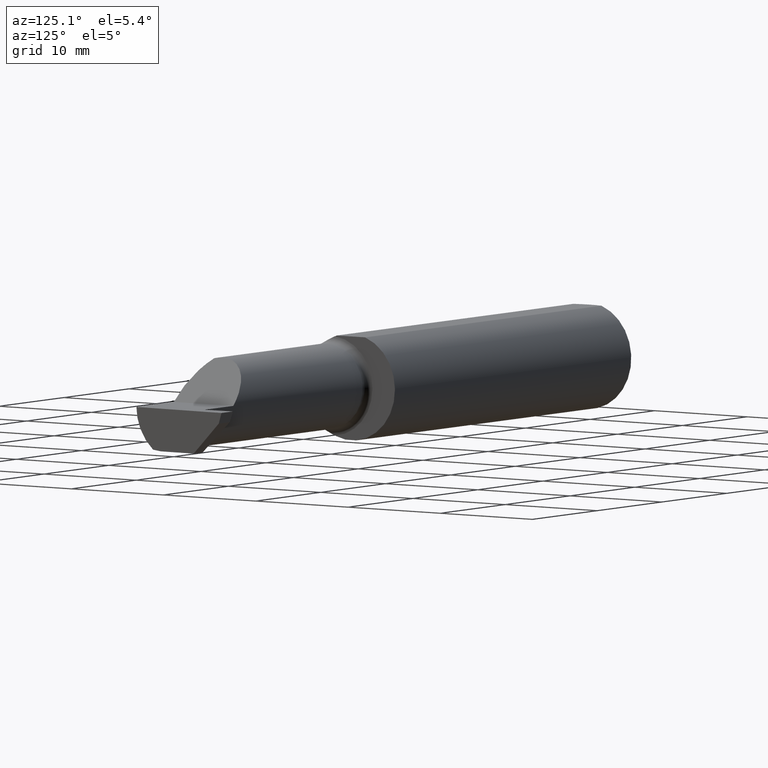
[diagram: clean part render]
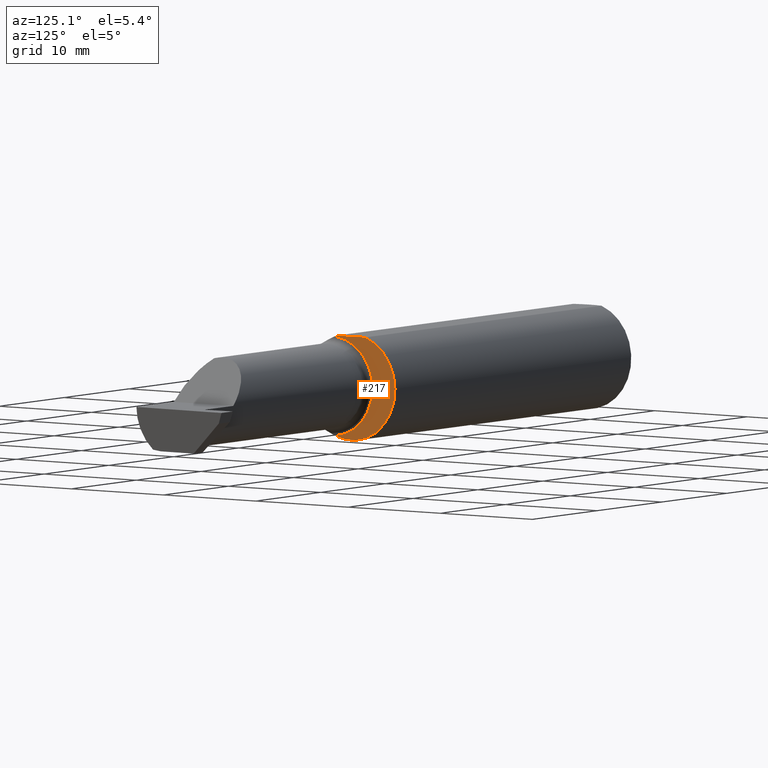
[diagram: same view with one face highlighted and labeled with its STEP entity id]
A machine part, auxiliary view. The second image highlights one B-rep face of the part: STEP entity #217.
In plain terms, the highlighted planar face has unit normal (1, 0, 0).
Its self-contained STEP definition (entity closure, byte-faithful):
#8 = ORIENTED_EDGE ( 'NONE', *, *, #441, .T. ) ;
#17 = CARTESIAN_POINT ( 'NONE',  ( 1.450000000000000178, -0.06851976604679065053, -0.1743704796142198643 ) ) ;
#66 = DIRECTION ( 'NONE',  ( 1.000000000000000000, 0.000000000000000000, 0.000000000000000000 ) ) ;
#115 = VERTEX_POINT ( 'NONE', #787 ) ;
#144 = VECTOR ( 'NONE', #442, 39.37007874015748143 ) ;
#150 = EDGE_LOOP ( 'NONE', ( #8, #459, #616, #560 ) ) ;
#167 = DIRECTION ( 'NONE',  ( 1.000000000000000000, 0.000000000000000000, 0.000000000000000000 ) ) ;
#177 = AXIS2_PLACEMENT_3D ( 'NONE', #655, #187, #985 ) ;
#187 = DIRECTION ( 'NONE',  ( -1.000000000000000000, -0.000000000000000000, -0.000000000000000000 ) ) ;
#217 = ADVANCED_FACE ( 'NONE', ( #806 ), #960, .T. ) ;
#261 = CIRCLE ( 'NONE', #347, 0.1873499999999999888 ) ;
#274 = DIRECTION ( 'NONE',  ( 1.000000000000000000, 0.000000000000000000, 0.000000000000000000 ) ) ;
#282 = EDGE_CURVE ( 'NONE', #869, #115, #832, .T. ) ;
#322 = DIRECTION ( 'NONE',  ( 0.000000000000000000, 0.000000000000000000, -1.000000000000000000 ) ) ;
#326 = EDGE_CURVE ( 'NONE', #869, #782, #776, .T. ) ;
#347 = AXIS2_PLACEMENT_3D ( 'NONE', #634, #66, #471 ) ;
#441 = EDGE_CURVE ( 'NONE', #637, #782, #261, .T. ) ;
#442 = DIRECTION ( 'NONE',  ( -0.000000000000000000, 1.000000000000000000, 0.000000000000000000 ) ) ;
#459 = ORIENTED_EDGE ( 'NONE', *, *, #326, .F. ) ;
#471 = DIRECTION ( 'NONE',  ( 0.000000000000000000, 0.000000000000000000, -1.000000000000000000 ) ) ;
#507 = CARTESIAN_POINT ( 'NONE',  ( 1.450000000000000178, -0.06039039658753699025, 0.1773499999999999799 ) ) ;
#560 = ORIENTED_EDGE ( 'NONE', *, *, #855, .T. ) ;
#596 = AXIS2_PLACEMENT_3D ( 'NONE', #889, #167, #820 ) ;
#616 = ORIENTED_EDGE ( 'NONE', *, *, #282, .T. ) ;
#634 = CARTESIAN_POINT ( 'NONE',  ( 1.450000000000000178, 0.000000000000000000, 0.000000000000000000 ) ) ;
#637 = VERTEX_POINT ( 'NONE', #17 ) ;
#653 = CARTESIAN_POINT ( 'NONE',  ( 1.450000000000000178, 0.2666499999999999981, 0.000000000000000000 ) ) ;
#655 = CARTESIAN_POINT ( 'NONE',  ( 1.450000000000000178, -0.08334999999999996578, 0.000000000000000000 ) ) ;
#720 = AXIS2_PLACEMENT_3D ( 'NONE', #653, #274, #322 ) ;
#753 = CIRCLE ( 'NONE', #177, 0.1749999999999999889 ) ;
#776 = LINE ( 'NONE', #927, #144 ) ;
#782 = VERTEX_POINT ( 'NONE', #857 ) ;
#787 = CARTESIAN_POINT ( 'NONE',  ( 1.450000000000000178, -0.06851976604679065053, 0.1743704796142198643 ) ) ;
#806 = FACE_OUTER_BOUND ( 'NONE', #150, .T. ) ;
#820 = DIRECTION ( 'NONE',  ( 0.000000000000000000, 0.000000000000000000, -1.000000000000000000 ) ) ;
#832 = CIRCLE ( 'NONE', #596, 0.1873499999999999888 ) ;
#855 = EDGE_CURVE ( 'NONE', #115, #637, #753, .T. ) ;
#857 = CARTESIAN_POINT ( 'NONE',  ( 1.450000000000000178, 0.06039039658754216666, 0.1773499999999999799 ) ) ;
#869 = VERTEX_POINT ( 'NONE', #507 ) ;
#889 = CARTESIAN_POINT ( 'NONE',  ( 1.450000000000000178, 0.000000000000000000, 0.000000000000000000 ) ) ;
#927 = CARTESIAN_POINT ( 'NONE',  ( 1.450000000000000178, -0.1873500000000000165, 0.1773499999999999799 ) ) ;
#960 = PLANE ( 'NONE',  #720 ) ;
#985 = DIRECTION ( 'NONE',  ( 0.000000000000000000, 0.000000000000000000, 1.000000000000000000 ) ) ;